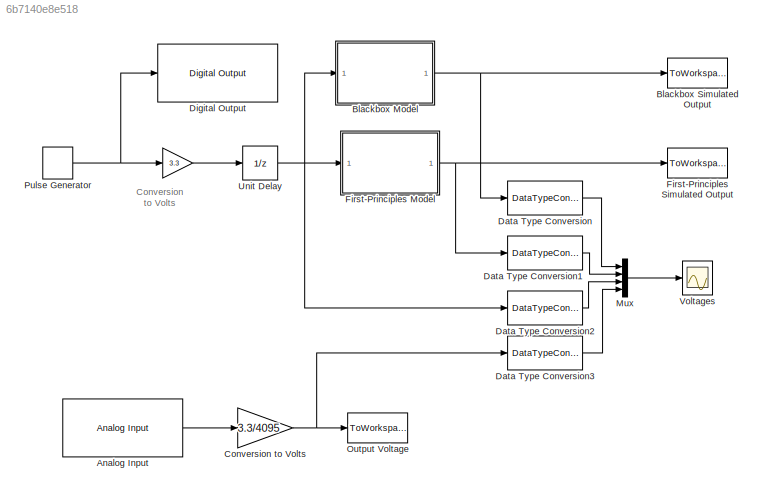
MODEL slx_6b7140e8e518
KIND model
CONFIG AbsTol = auto
CONFIG EnableMultiTasking = off
CONFIG FixedStep = auto
CONFIG MaxStep = auto
CONFIG MinStep = auto
CONFIG RelTol = 1e-3
CONFIG SampleTimeConstraint = Unconstrained
CONFIG SolverName = VariableStepAuto
CONFIG StartTime = 0.0
CONFIG StopTime = 10.0
BLOCK [Gain]  
  Gain = 3.3
BLOCK [Reference] Analog Input  REF=arduinolib/Analog Input
  Ports = [0, 1]
  SourceBlock = arduinolib/Analog Input
  SourceProductBaseCode = ARDUINO
  SourceType = Arduino Analog Input
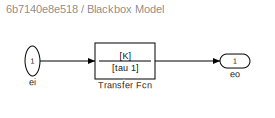
BLOCK [SubSystem] Blackbox Model
  Ports = [1, 1]
  RequestExecContextInheritance = off
BLOCK [TransferFcn] Blackbox Model/Transfer Fcn
  Denominator = [tau 1]
  Numerator = [K]
BLOCK [Inport] Blackbox Model/ei
BLOCK [Outport] Blackbox Model/eo
  VectorParamsAs1DForOutWhenUnconnected = off
BLOCK [ToWorkspace] Blackbox Simulated Output
  MaxDataPoints = inf
  Ports = [1]
  SampleTime = -1
  Save2DSignal = 2-D array (concatenate along first dimension)
  VariableName = eo_bb
BLOCK [Gain] Conversion to Volts
  Gain = 3.3/4095
BLOCK [DataTypeConversion] Data Type Conversion
  RndMeth = Floor
  SaturateOnIntegerOverflow = off
BLOCK [DataTypeConversion] Data Type Conversion1
  RndMeth = Floor
  SaturateOnIntegerOverflow = off
BLOCK [DataTypeConversion] Data Type Conversion2
  RndMeth = Floor
  SaturateOnIntegerOverflow = off
BLOCK [DataTypeConversion] Data Type Conversion3
  RndMeth = Floor
  SaturateOnIntegerOverflow = off
BLOCK [Reference] Digital Output  REF=arduinolib/Digital Output
  Ports = [1]
  SourceBlock = arduinolib/Digital Output
  SourceProductBaseCode = ARDUINO
  SourceType = Arduino Digital Output
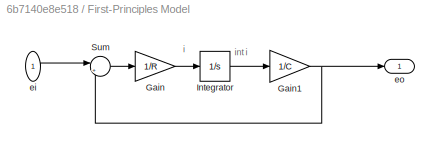
BLOCK [SubSystem] First-Principles Model
  Ports = [1, 1]
  RequestExecContextInheritance = off
BLOCK [Gain] First-Principles Model/Gain
  Gain = 1/R
  SampleTime = 0.1
BLOCK [Gain] First-Principles Model/Gain1
  Gain = 1/C
  SampleTime = 0.1
BLOCK [Integrator] First-Principles Model/Integrator
  InitialCondition = q_init
  Ports = [1, 1]
BLOCK [Sum] First-Principles Model/Sum
  Inputs = |+-
  Ports = [2, 1]
BLOCK [Inport] First-Principles Model/ei
BLOCK [Outport] First-Principles Model/eo
  VectorParamsAs1DForOutWhenUnconnected = off
BLOCK [ToWorkspace] First-Principles Simulated Output
  MaxDataPoints = inf
  Ports = [1]
  SampleTime = -1
  Save2DSignal = 2-D array (concatenate along first dimension)
  VariableName = eo_fp
BLOCK [Mux] Mux
  DisplayOption = bar
  Ports = [4, 1]
BLOCK [ToWorkspace] Output Voltage
  MaxDataPoints = inf
  Ports = [1]
  SampleTime = -1
  Save2DSignal = 2-D array (concatenate along first dimension)
  VariableName = eo_act
BLOCK [DiscretePulseGenerator] Pulse Generator
  Period = 100
  Ports = [0, 1]
  PulseWidth = 50
  SampleTime = 0.1
BLOCK [UnitDelay] Unit Delay
  HasFrameUpgradeWarning = on
  SampleTime = -1
BLOCK [Scope] Voltages
  Floating = off
  NumInputPorts = 1
  Ports = [1]
  ScopeSpecificationString = Simulink.scopes.TimeScopeBlockCfg('CurrentConfiguration', extmgr.ConfigurationSet(extmgr.Configuration('Core','General UI',true),extmgr.Configuration('Core','Source UI',true),extmgr.Configuration('Sources','WiredSimulink',true,'DataLoggingSaveFormat','StructureWithTime','DataLoggingLimitDataPoints',true,'DataLoggingDecimation','1','DataLoggingDecimateData',true),extmgr.Configuration('Visuals','Tim...<+1772ch>
ANNOTATION (root): Conversion to Volts
ANNOTATION First-Principles Model: i
ANNOTATION First-Principles Model: int i
LINE  :1 -> Unit Delay:1
LINE Analog Input:1 -> Conversion to Volts:1
LINE Blackbox Model/Transfer Fcn:1 -> Blackbox Model/eo:1
LINE Blackbox Model/ei:1 -> Blackbox Model/Transfer Fcn:1
NET Blackbox Model:1 -> Blackbox Simulated Output:1, Data Type Conversion:1
NET Conversion to Volts:1 -> Data Type Conversion3:1, Output Voltage:1
LINE Data Type Conversion1:1 -> Mux:2
LINE Data Type Conversion2:1 -> Mux:3
LINE Data Type Conversion3:1 -> Mux:4
LINE Data Type Conversion:1 -> Mux:1
NET First-Principles Model/Gain1:1 -> First-Principles Model/Sum:2, First-Principles Model/eo:1
LINE First-Principles Model/Gain:1 -> First-Principles Model/Integrator:1
LINE First-Principles Model/Integrator:1 -> First-Principles Model/Gain1:1
LINE First-Principles Model/Sum:1 -> First-Principles Model/Gain:1
LINE First-Principles Model/ei:1 -> First-Principles Model/Sum:1
NET First-Principles Model:1 -> Data Type Conversion1:1, First-Principles Simulated Output:1
LINE Mux:1 -> Voltages:1
NET Pulse Generator:1 ->  :1, Digital Output:1
NET Unit Delay:1 -> Blackbox Model:1, Data Type Conversion2:1, First-Principles Model:1
note: NET lines group one-source signal fan-out (src -> all destinations, sorted); 1:1 wires keep LINE
